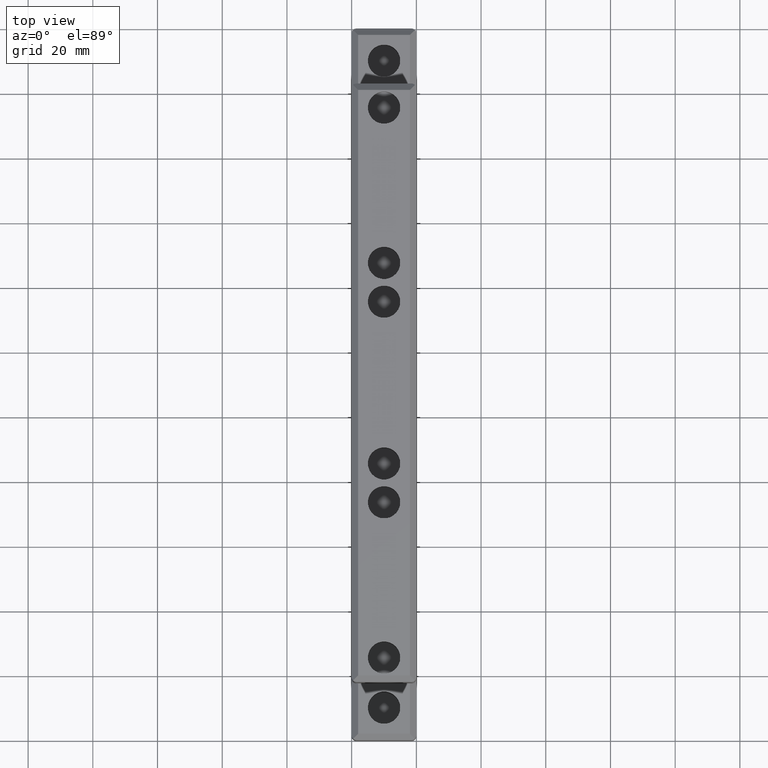
[diagram: clean part render]
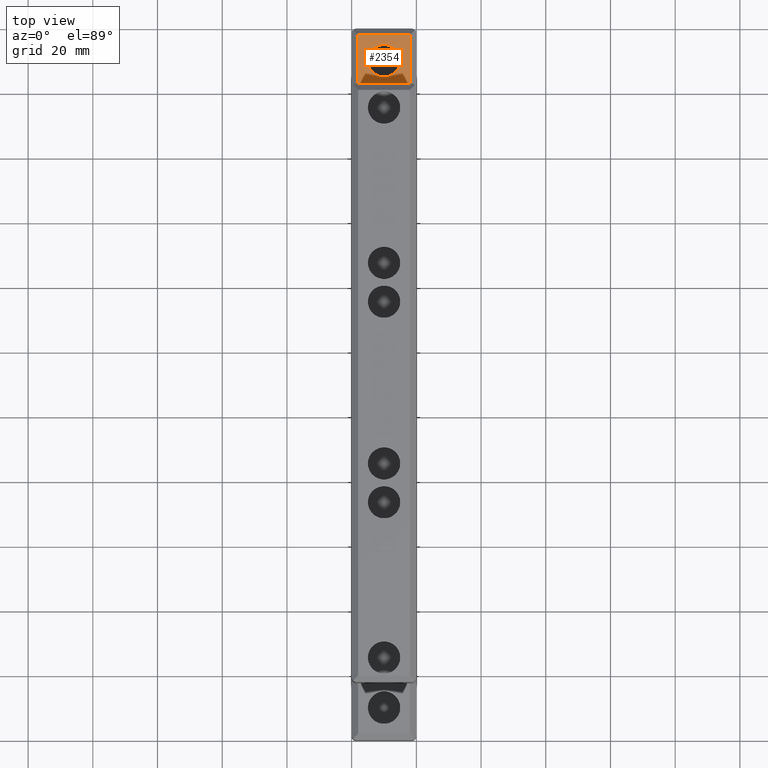
[diagram: same view with one face highlighted and labeled with its STEP entity id]
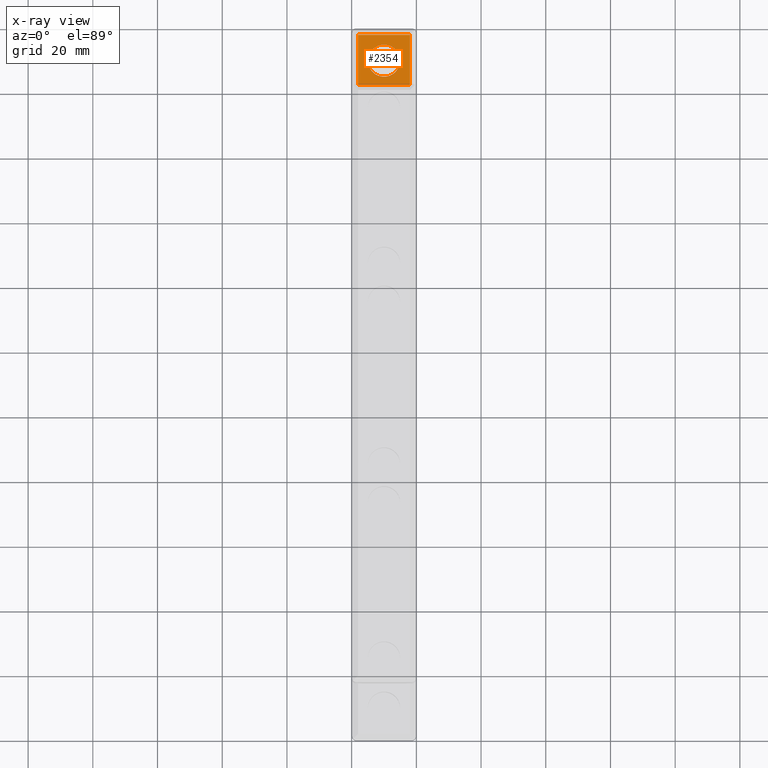
[diagram: x-ray of the same camera — body ghosted, the highlighted face saturated]
A machine part, top view. The second image highlights one B-rep face of the part: STEP entity #2354.
The next image is the same camera in x-ray: the body ghosted, the highlighted face saturated — about 4% of this face is hidden behind the body in this view.
In plain terms, the highlighted planar face has unit normal (0, -0, 1).
Its self-contained STEP definition (entity closure, byte-faithful):
#13 = DIRECTION ( 'NONE',  ( -2.238352872228140100E-016, 1.000000000000000000, 0.0000000000000000000 ) ) ;
#108 = ORIENTED_EDGE ( 'NONE', *, *, #1481, .F. ) ;
#161 = AXIS2_PLACEMENT_3D ( 'NONE', #2520, #602, #3006 ) ;
#312 = VECTOR ( 'NONE', #2350, 1000.000000000000000 ) ;
#316 = CARTESIAN_POINT ( 'NONE',  ( 202.5000000000000000, 19.50000000000000000, -20.00000000000000000 ) ) ;
#321 = EDGE_LOOP ( 'NONE', ( #1871, #108 ) ) ;
#413 = CARTESIAN_POINT ( 'NONE',  ( 218.0000000000000000, 19.50000000000000000, -20.00000000000000000 ) ) ;
#416 = CARTESIAN_POINT ( 'NONE',  ( 218.0000000000000000, 19.50000000000000000, -20.00000000000000000 ) ) ;
#468 = VECTOR ( 'NONE', #1040, 1000.000000000000000 ) ;
#469 = ORIENTED_EDGE ( 'NONE', *, *, #867, .F. ) ;
#570 = CIRCLE ( 'NONE', #161, 5.000000000000004400 ) ;
#602 = DIRECTION ( 'NONE',  ( -2.238352872228140100E-016, 1.000000000000000000, 0.0000000000000000000 ) ) ;
#631 = ORIENTED_EDGE ( 'NONE', *, *, #734, .T. ) ;
#734 = EDGE_CURVE ( 'NONE', #2028, #1689, #2471, .T. ) ;
#767 = CARTESIAN_POINT ( 'NONE',  ( 210.0000000000000000, 19.50000000000000000, -10.00000000000000000 ) ) ;
#866 = DIRECTION ( 'NONE',  ( -1.000000000000000000, -2.238352872228140100E-016, 0.0000000000000000000 ) ) ;
#867 = EDGE_CURVE ( 'NONE', #2206, #994, #2663, .T. ) ;
#994 = VERTEX_POINT ( 'NONE', #3134 ) ;
#1040 = DIRECTION ( 'NONE',  ( 0.0000000000000000000, 0.0000000000000000000, 1.000000000000000000 ) ) ;
#1047 = DIRECTION ( 'NONE',  ( -1.000000000000000000, 0.0000000000000000000, 0.0000000000000000000 ) ) ;
#1149 = EDGE_CURVE ( 'NONE', #2206, #2028, #2439, .T. ) ;
#1236 = ORIENTED_EDGE ( 'NONE', *, *, #1897, .T. ) ;
#1252 = VECTOR ( 'NONE', #1357, 1000.000000000000000 ) ;
#1351 = EDGE_CURVE ( 'NONE', #2200, #3115, #1523, .T. ) ;
#1357 = DIRECTION ( 'NONE',  ( -1.000000000000000000, -2.238352872228140100E-016, 0.0000000000000000000 ) ) ;
#1369 = PLANE ( 'NONE',  #2370 ) ;
#1481 = EDGE_CURVE ( 'NONE', #3115, #2200, #570, .T. ) ;
#1523 = CIRCLE ( 'NONE', #2050, 5.000000000000004400 ) ;
#1689 = VERTEX_POINT ( 'NONE', #2612 ) ;
#1837 = ORIENTED_EDGE ( 'NONE', *, *, #1149, .T. ) ;
#1871 = ORIENTED_EDGE ( 'NONE', *, *, #1351, .F. ) ;
#1897 = EDGE_CURVE ( 'NONE', #1689, #994, #2400, .T. ) ;
#1901 = FACE_BOUND ( 'NONE', #321, .T. ) ;
#1955 = VECTOR ( 'NONE', #2850, 1000.000000000000000 ) ;
#2028 = VERTEX_POINT ( 'NONE', #3172 ) ;
#2050 = AXIS2_PLACEMENT_3D ( 'NONE', #767, #13, #1047 ) ;
#2051 = CARTESIAN_POINT ( 'NONE',  ( 202.5000000000000000, 19.50000000000000000, -18.00000000000000000 ) ) ;
#2053 = CARTESIAN_POINT ( 'NONE',  ( 210.0000000000000000, 19.50000000000000000, -5.000000000000000000 ) ) ;
#2169 = CARTESIAN_POINT ( 'NONE',  ( 210.0000000000000000, 19.50000000000000000, -15.00000000000000000 ) ) ;
#2200 = VERTEX_POINT ( 'NONE', #2053 ) ;
#2206 = VERTEX_POINT ( 'NONE', #2497 ) ;
#2350 = DIRECTION ( 'NONE',  ( 1.000000000000000000, 2.238352872228140100E-016, 0.0000000000000000000 ) ) ;
#2354 = ADVANCED_FACE ( 'NONE', ( #1901, #2603 ), #1369, .T. ) ;
#2370 = AXIS2_PLACEMENT_3D ( 'NONE', #413, #3062, #866 ) ;
#2400 = LINE ( 'NONE', #2867, #312 ) ;
#2439 = LINE ( 'NONE', #2051, #1252 ) ;
#2471 = LINE ( 'NONE', #316, #468 ) ;
#2497 = CARTESIAN_POINT ( 'NONE',  ( 218.0000000000000000, 19.50000000000000000, -18.00000000000000000 ) ) ;
#2520 = CARTESIAN_POINT ( 'NONE',  ( 210.0000000000000000, 19.50000000000000000, -10.00000000000000000 ) ) ;
#2603 = FACE_OUTER_BOUND ( 'NONE', #2877, .T. ) ;
#2612 = CARTESIAN_POINT ( 'NONE',  ( 202.5000000000000000, 19.50000000000000000, -2.000000000000000000 ) ) ;
#2663 = LINE ( 'NONE', #416, #1955 ) ;
#2850 = DIRECTION ( 'NONE',  ( 0.0000000000000000000, 0.0000000000000000000, 1.000000000000000000 ) ) ;
#2867 = CARTESIAN_POINT ( 'NONE',  ( 218.0000000000000000, 19.50000000000000000, -2.000000000000000000 ) ) ;
#2877 = EDGE_LOOP ( 'NONE', ( #469, #1837, #631, #1236 ) ) ;
#3006 = DIRECTION ( 'NONE',  ( -1.000000000000000000, 0.0000000000000000000, 0.0000000000000000000 ) ) ;
#3062 = DIRECTION ( 'NONE',  ( -2.238352872228140100E-016, 1.000000000000000000, 0.0000000000000000000 ) ) ;
#3115 = VERTEX_POINT ( 'NONE', #2169 ) ;
#3134 = CARTESIAN_POINT ( 'NONE',  ( 218.0000000000000000, 19.50000000000000000, -2.000000000000000000 ) ) ;
#3172 = CARTESIAN_POINT ( 'NONE',  ( 202.5000000000000000, 19.50000000000000000, -18.00000000000000000 ) ) ;